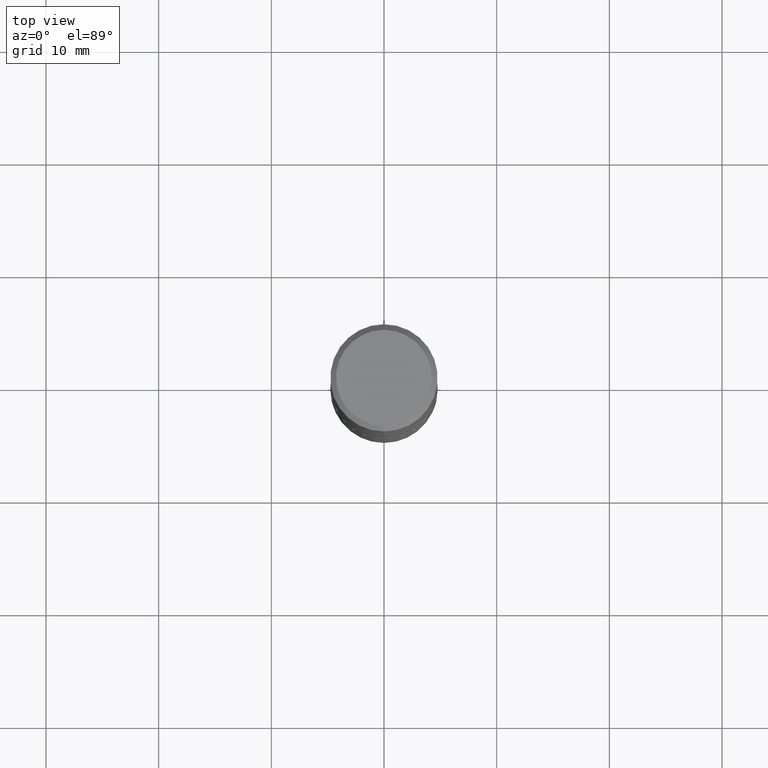
[diagram: clean part render]
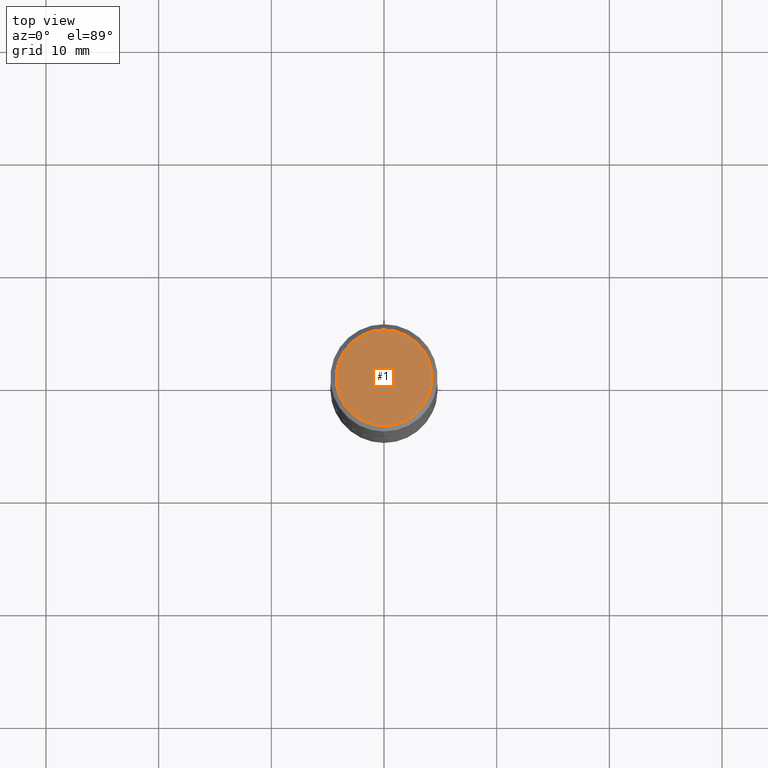
[diagram: same view with one face highlighted and labeled with its STEP entity id]
A machine part, top view. The second image highlights one B-rep face of the part: STEP entity #1.
In plain terms, the highlighted planar face has unit normal (0, -0, -1).
Its self-contained STEP definition (entity closure, byte-faithful):
#1 = ADVANCED_FACE ( 'NONE', ( #367 ), #68, .F. ) ;
#63 = EDGE_LOOP ( 'NONE', ( #387, #234 ) ) ;
#64 = DIRECTION ( 'NONE',  ( -2.445024502847078342E-29, 3.492117606511420488E-15, 1.000000000000000000 ) ) ;
#68 = PLANE ( 'NONE',  #382 ) ;
#70 = DIRECTION ( 'NONE',  ( -6.982962677686265922E-15, -1.000000000000000000, 3.492117606511420488E-15 ) ) ;
#79 = AXIS2_PLACEMENT_3D ( 'NONE', #111, #375, #70 ) ;
#93 = DIRECTION ( 'NONE',  ( 2.445024502847078062E-29, -3.492117606511420488E-15, -1.000000000000000000 ) ) ;
#111 = CARTESIAN_POINT ( 'NONE',  ( -1.881196954036604278E-45, 2.686828290210290471E-31, 7.693979965624344305E-17 ) ) ;
#132 = VERTEX_POINT ( 'NONE', #341 ) ;
#133 = EDGE_CURVE ( 'NONE', #141, #132, #196, .T. ) ;
#141 = VERTEX_POINT ( 'NONE', #378 ) ;
#170 = CARTESIAN_POINT ( 'NONE',  ( -1.881196954036604278E-45, 2.686828290210290471E-31, 7.693979965624344305E-17 ) ) ;
#181 = DIRECTION ( 'NONE',  ( -6.982962677686265922E-15, -1.000000000000000000, 3.492117606511420488E-15 ) ) ;
#193 = EDGE_CURVE ( 'NONE', #132, #141, #309, .T. ) ;
#196 = CIRCLE ( 'NONE', #79, 0.1674999999999999267 ) ;
#208 = CARTESIAN_POINT ( 'NONE',  ( 1.169646248512449003E-15, 0.1674999999999999267, -5.464597992625409218E-16 ) ) ;
#230 = AXIS2_PLACEMENT_3D ( 'NONE', #170, #64, #181 ) ;
#234 = ORIENTED_EDGE ( 'NONE', *, *, #193, .T. ) ;
#309 = CIRCLE ( 'NONE', #230, 0.1674999999999999267 ) ;
#335 = DIRECTION ( 'NONE',  ( 6.982962677686265922E-15, 1.000000000000000000, -3.492117606511420488E-15 ) ) ;
#341 = CARTESIAN_POINT ( 'NONE',  ( -1.217738394604446245E-15, -0.1674999999999999267, 6.618694987469060248E-16 ) ) ;
#367 = FACE_OUTER_BOUND ( 'NONE', #63, .T. ) ;
#375 = DIRECTION ( 'NONE',  ( -2.445024502847078342E-29, 3.492117606511420488E-15, 1.000000000000000000 ) ) ;
#378 = CARTESIAN_POINT ( 'NONE',  ( 1.239475875289312104E-15, 0.1674999999999999267, -5.079898994344191880E-16 ) ) ;
#382 = AXIS2_PLACEMENT_3D ( 'NONE', #208, #93, #335 ) ;
#387 = ORIENTED_EDGE ( 'NONE', *, *, #133, .T. ) ;